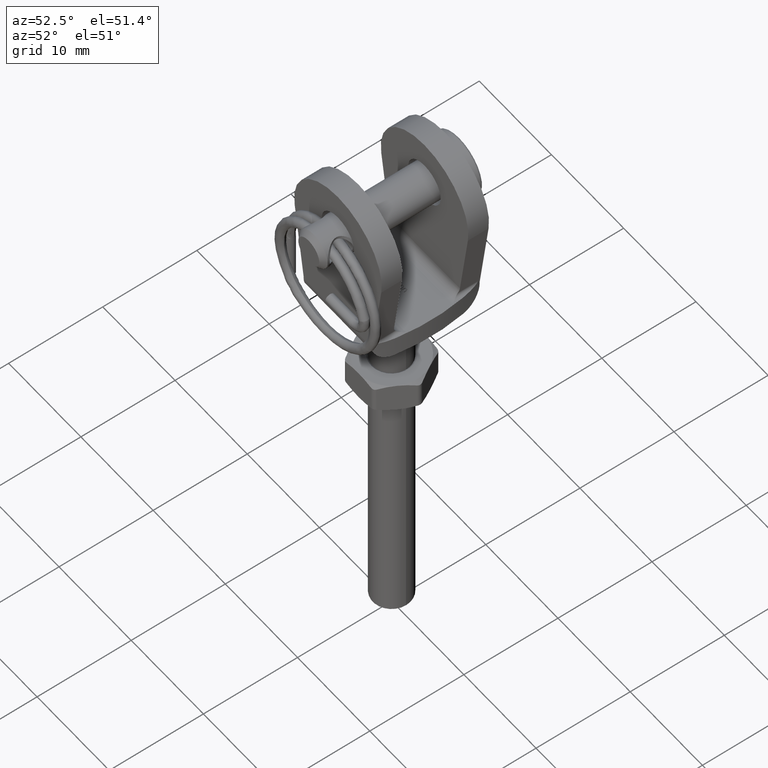
[diagram: clean part render]
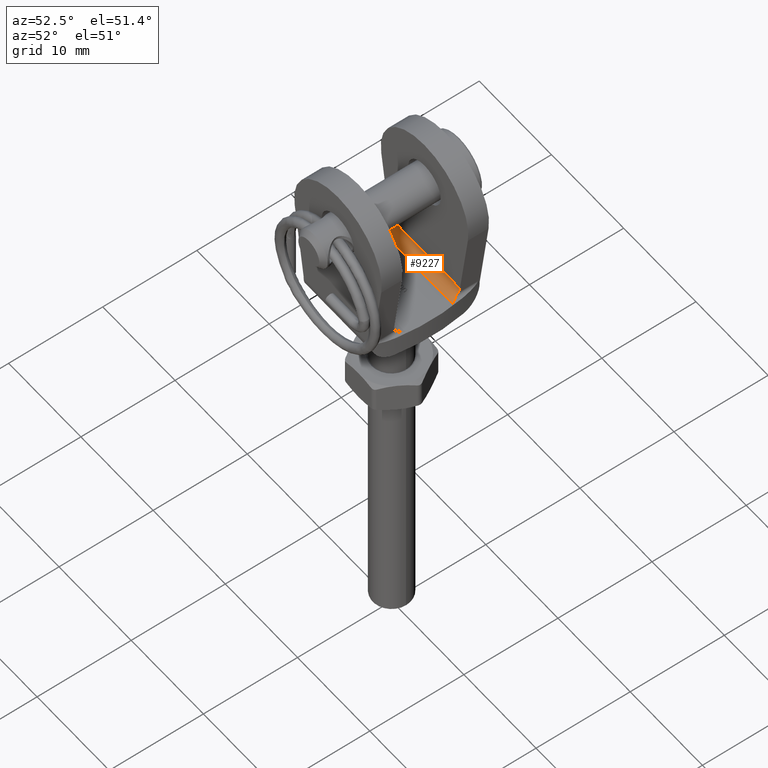
[diagram: same view with one face highlighted and labeled with its STEP entity id]
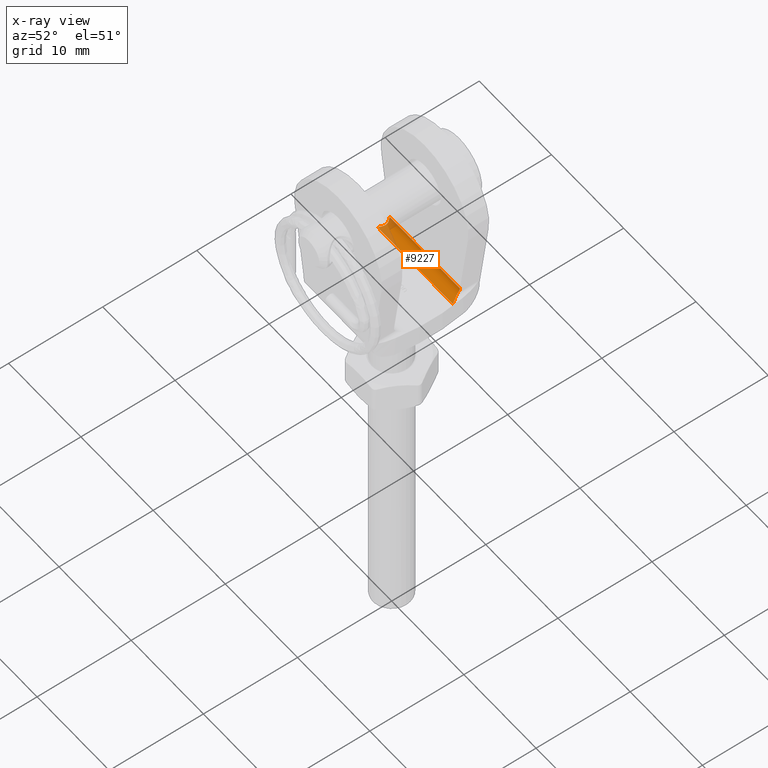
[diagram: x-ray of the same camera — body ghosted, the highlighted face saturated]
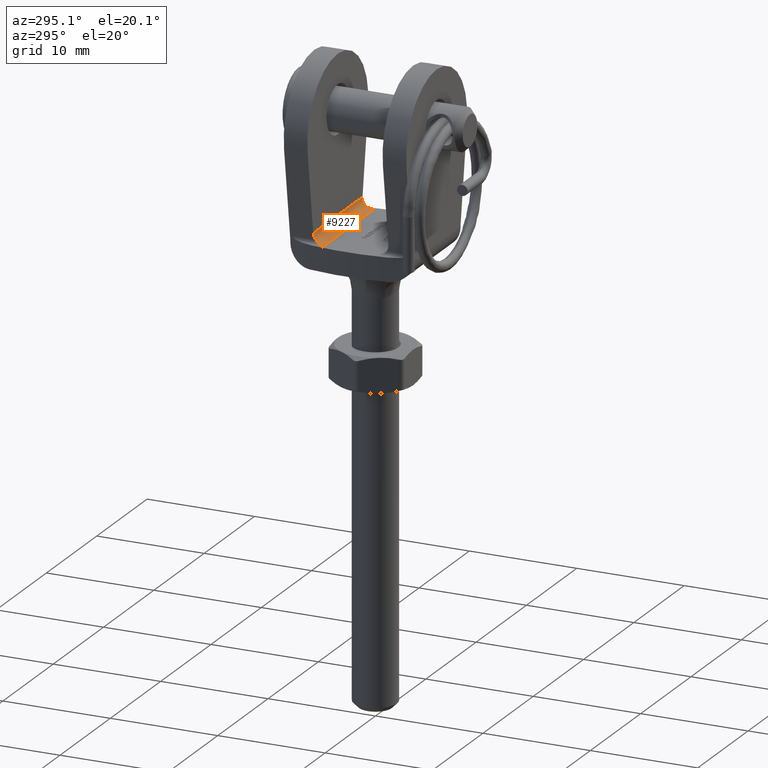
[diagram: same view with one face highlighted and labeled with its STEP entity id]
A machine part, auxiliary view. The second image highlights one B-rep face of the part: STEP entity #9227.
The next image is the same camera in x-ray: the body ghosted, the highlighted face saturated — about 12% of this face is hidden behind the body in this view.
A second angle (auxiliary view) of the same face is appended — the face is thin or edge-on in the first view.
In plain terms, the highlighted cylindrical surface (edge-blend (fillet) strip) has radius 1 mm, axis along (-1, 0, 0).
Its self-contained STEP definition (entity closure, byte-faithful):
#111 = EDGE_CURVE ( 'NONE', #5016, #19700, #19292, .T. ) ;
#891 = CARTESIAN_POINT ( 'NONE',  ( 5.212651816028927243, 2.500000000000000000, -6.383657361569464962E-16 ) ) ;
#1188 = DIRECTION ( 'NONE',  ( 0.000000000000000000, 0.000000000000000000, 1.000000000000000000 ) ) ;
#1851 = VERTEX_POINT ( 'NONE', #15192 ) ;
#2218 = EDGE_CURVE ( 'NONE', #14084, #10660, #12430, .T. ) ;
#2567 = DIRECTION ( 'NONE',  ( -1.000000000000000000, 0.000000000000000000, 1.224646799147353207E-16 ) ) ;
#2775 = EDGE_CURVE ( 'NONE', #3124, #1851, #15421, .T. ) ;
#3031 = EDGE_LOOP ( 'NONE', ( #13207, #9516, #4387, #9810, #10565, #10250 ) ) ;
#3124 = VERTEX_POINT ( 'NONE', #13472 ) ;
#3133 = AXIS2_PLACEMENT_3D ( 'NONE', #4201, #2567, #1188 ) ;
#3752 = CARTESIAN_POINT ( 'NONE',  ( 4.817641285449772326, 3.230079632065782747, 0.3109945856738012271 ) ) ;
#3873 = CARTESIAN_POINT ( 'NONE',  ( -4.816849420254873948, 3.340247361246008406, 0.4577967429836667379 ) ) ;
#4141 = CARTESIAN_POINT ( 'NONE',  ( -4.816849420254873948, 3.340247361246008406, 0.4577967429836667379 ) ) ;
#4201 = CARTESIAN_POINT ( 'NONE',  ( -16.53500000000000014, 2.500000000000000000, 1.000000000000001998 ) ) ;
#4387 = ORIENTED_EDGE ( 'NONE', *, *, #11018, .F. ) ;
#4620 = CARTESIAN_POINT ( 'NONE',  ( -1.671706405553128863E-16, 3.500000000000000000, 0.9999999999999991118 ) ) ;
#4882 = DIRECTION ( 'NONE',  ( 1.000000000000000000, -0.000000000000000000, -1.224646799147353207E-16 ) ) ;
#5016 = VERTEX_POINT ( 'NONE', #13054 ) ;
#5234 = CARTESIAN_POINT ( 'NONE',  ( -16.53500000000000014, 2.500000000000000000, 2.024953482390148420E-15 ) ) ;
#5397 = CARTESIAN_POINT ( 'NONE',  ( 4.805589605488410854, 3.290489550473456148, 0.3806875248777403797 ) ) ;
#6648 =( BOUNDED_CURVE ( )  B_SPLINE_CURVE ( 3, ( #3873, #8232, #16194, #6933 ),
 .UNSPECIFIED., .F., .T. ) 
 B_SPLINE_CURVE_WITH_KNOTS ( ( 4, 4 ),
 ( 4.139331929797336329, 4.712388980384691450 ),
 .UNSPECIFIED. ) 
 CURVE ( )  GEOMETRIC_REPRESENTATION_ITEM ( )  RATIONAL_B_SPLINE_CURVE ( ( 1.000000000000000000, 0.9728205169849435396, 0.9728205169849435396, 1.000000000000000000 ) ) 
 REPRESENTATION_ITEM ( '' )  );
#6889 = CARTESIAN_POINT ( 'NONE',  ( 4.816849420254875724, 3.340247361246007962, 0.4577967429836648505 ) ) ;
#6933 = CARTESIAN_POINT ( 'NONE',  ( -4.896024237348626684, 3.500000000000000000, 1.000000000000001776 ) ) ;
#7261 = CARTESIAN_POINT ( 'NONE',  ( -4.864009667106865109, 3.098526943173434134, 0.1940782688710003812 ) ) ;
#7983 = CARTESIAN_POINT ( 'NONE',  ( 4.816849420254875724, 3.340247361246007962, 0.4577967429836648505 ) ) ;
#8232 = CARTESIAN_POINT ( 'NONE',  ( -4.840613289051515444, 3.445261352269066712, 0.6205359514063456539 ) ) ;
#8438 = DIRECTION ( 'NONE',  ( -1.000000000000000000, 0.000000000000000000, 1.224646799147353207E-16 ) ) ;
#8574 = CYLINDRICAL_SURFACE ( 'NONE', #3133, 0.9999999999999997780 ) ;
#8758 = CARTESIAN_POINT ( 'NONE',  ( -4.898677728868458203, 3.027189901143837680, 0.1463208864860341685 ) ) ;
#9227 = ADVANCED_FACE ( 'NONE', ( #15370 ), #8574, .F. ) ;
#9516 = ORIENTED_EDGE ( 'NONE', *, *, #111, .F. ) ;
#9580 = VECTOR ( 'NONE', #8438, 1000.000000000000000 ) ;
#9636 =( BOUNDED_CURVE ( )  B_SPLINE_CURVE ( 3, ( #17099, #11121, #15634, #7983 ),
 .UNSPECIFIED., .F., .T. ) 
 B_SPLINE_CURVE_WITH_KNOTS ( ( 4, 4 ),
 ( 4.712388980384689674, 5.285446030972043907 ),
 .UNSPECIFIED. ) 
 CURVE ( )  GEOMETRIC_REPRESENTATION_ITEM ( )  RATIONAL_B_SPLINE_CURVE ( ( 1.000000000000000000, 0.9728205169849435396, 0.9728205169849435396, 1.000000000000000000 ) ) 
 REPRESENTATION_ITEM ( '' )  );
#9810 = ORIENTED_EDGE ( 'NONE', *, *, #2218, .F. ) ;
#10130 = VECTOR ( 'NONE', #4882, 1000.000000000000000 ) ;
#10187 = CARTESIAN_POINT ( 'NONE',  ( -5.016813760580687287, 2.808476097103608460, 0.03478946318024224438 ) ) ;
#10250 = ORIENTED_EDGE ( 'NONE', *, *, #2775, .F. ) ;
#10565 = ORIENTED_EDGE ( 'NONE', *, *, #13493, .F. ) ;
#10660 = VERTEX_POINT ( 'NONE', #13934 ) ;
#10907 = CARTESIAN_POINT ( 'NONE',  ( -5.212651816028927243, 2.500000000000000000, 6.383657361569462990E-16 ) ) ;
#11018 = EDGE_CURVE ( 'NONE', #10660, #5016, #6648, .T. ) ;
#11121 = CARTESIAN_POINT ( 'NONE',  ( 4.867742245767719744, 3.500000000000000444, 0.8063198815865932900 ) ) ;
#11765 = CARTESIAN_POINT ( 'NONE',  ( 5.115667424933484142, 2.653346608148082098, -6.488272375967940597E-16 ) ) ;
#11833 = CARTESIAN_POINT ( 'NONE',  ( 5.016823671953959618, 2.808459437990791674, 0.03478349402377772098 ) ) ;
#12430 = B_SPLINE_CURVE_WITH_KNOTS ( 'NONE', 3,
 ( #16522, #19421, #10187, #8758, #7261, #19549, #18089, #4141 ),
 .UNSPECIFIED., .F., .F.,
 ( 4, 2, 2, 4 ),
 ( -6.324571454743857956E-06, 0.0005406203401127793141, 0.0008140927958965409311, 0.001087565251680302440 ),
 .UNSPECIFIED. ) ;
#13054 = CARTESIAN_POINT ( 'NONE',  ( -4.896024237348626684, 3.500000000000000000, 1.000000000000001776 ) ) ;
#13207 = ORIENTED_EDGE ( 'NONE', *, *, #17883, .F. ) ;
#13330 = CARTESIAN_POINT ( 'NONE',  ( 4.898682696333537478, 3.027179859356234459, 0.1463145028977143880 ) ) ;
#13457 = CARTESIAN_POINT ( 'NONE',  ( 4.896024237348628461, 3.500000000000000000, 0.9999999999999991118 ) ) ;
#13472 = CARTESIAN_POINT ( 'NONE',  ( 4.816849420254875724, 3.340247361246007962, 0.4577967429836648505 ) ) ;
#13493 = EDGE_CURVE ( 'NONE', #1851, #14084, #18786, .T. ) ;
#13934 = CARTESIAN_POINT ( 'NONE',  ( -4.816849420254873948, 3.340247361246008406, 0.4577967429836667379 ) ) ;
#14084 = VERTEX_POINT ( 'NONE', #10907 ) ;
#15192 = CARTESIAN_POINT ( 'NONE',  ( 5.212651816028927243, 2.500000000000000000, -6.383657361569464962E-16 ) ) ;
#15370 = FACE_OUTER_BOUND ( 'NONE', #3031, .T. ) ;
#15421 = B_SPLINE_CURVE_WITH_KNOTS ( 'NONE', 3,
 ( #6889, #5397, #3752, #18517, #13330, #11833, #11765, #891 ),
 .UNSPECIFIED., .F., .F.,
 ( 4, 2, 2, 4 ),
 ( 0.000000000000000000, 0.0002721621196140645849, 0.0005443242392281291697, 0.001088648478456258339 ),
 .UNSPECIFIED. ) ;
#15634 = CARTESIAN_POINT ( 'NONE',  ( 4.840613289051517221, 3.445261352269066268, 0.6205359514063439885 ) ) ;
#16194 = CARTESIAN_POINT ( 'NONE',  ( -4.867742245767716192, 3.500000000000000444, 0.8063198815865955105 ) ) ;
#16522 = CARTESIAN_POINT ( 'NONE',  ( -5.212651816028927243, 2.500000000000000000, 6.383657361569462990E-16 ) ) ;
#17099 = CARTESIAN_POINT ( 'NONE',  ( 4.896024237348628461, 3.500000000000000000, 0.9999999999999991118 ) ) ;
#17883 = EDGE_CURVE ( 'NONE', #19700, #3124, #9636, .T. ) ;
#18089 = CARTESIAN_POINT ( 'NONE',  ( -4.805589920743475574, 3.290490943604901908, 0.3806896838006287864 ) ) ;
#18517 = CARTESIAN_POINT ( 'NONE',  ( 4.864012901564114699, 3.098519322312689006, 0.1940723661851003479 ) ) ;
#18786 = LINE ( 'NONE', #5234, #9580 ) ;
#19292 = LINE ( 'NONE', #4620, #10130 ) ;
#19421 = CARTESIAN_POINT ( 'NONE',  ( -5.115200489434150732, 2.654084901954905540, 4.878909776184767981E-16 ) ) ;
#19549 = CARTESIAN_POINT ( 'NONE',  ( -4.817640624988801079, 3.230083061557605717, 0.3109985038933722468 ) ) ;
#19700 = VERTEX_POINT ( 'NONE', #13457 ) ;